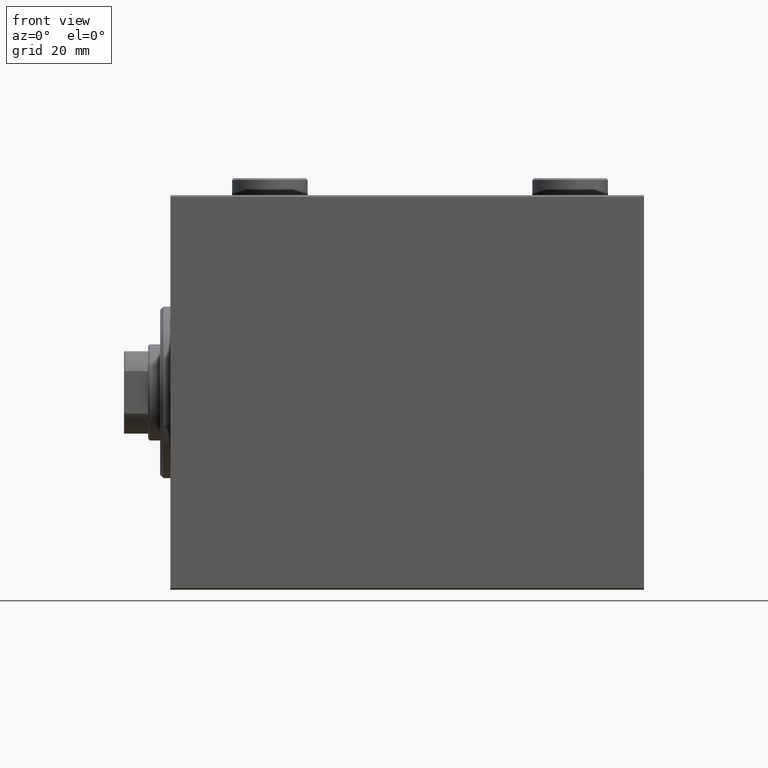
[diagram: clean part render]
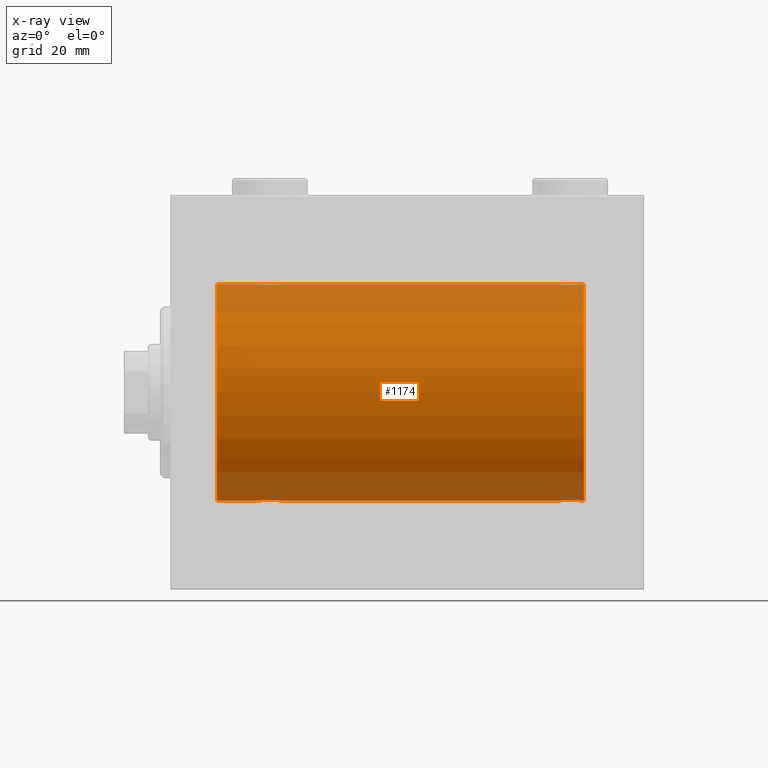
[diagram: x-ray — body ghosted, one internal face saturated and labeled with its STEP entity id]
A machine part, front view, then the same camera in x-ray: the body is ghosted and one INTERNAL B-rep face — a face not visible from any outside direction — is saturated and labeled: STEP entity #1174.
In plain terms, the highlighted cylindrical surface (partial cylindrical patch) has radius 31.5 mm, axis along (-1, -0, -0).
Its self-contained STEP definition (entity closure, byte-faithful):
#20 = B_SPLINE_CURVE_WITH_KNOTS ( 'NONE', 3,
 ( #30118, #26020, #11812, #25788, #43654, #33099, #26238, #4941, #39993, #12259, #36318, #32873, #43876, #15695, #8823, #33544, #9054, #5400, #1494, #22797, #19348, #33328, #1947, #29889, #23030, #26461, #35305, #7140, #34852, #17897, #41972, #27976 ),
 .UNSPECIFIED., .F., .F.,
 ( 4, 2, 2, 2, 2, 2, 2, 2, 2, 2, 2, 2, 2, 2, 2, 4 ),
 ( 0.009384682587134662163, 0.009971088165454068328, 0.01055749374377347449, 0.01114389932209288066, 0.01173030490041228682, 0.01231671047873168605, 0.01290311605705108527, 0.01348952163537048277, 0.01407592721368988199, 0.01466233279200928122, 0.01524873837032868044, 0.01583514394864807967, 0.01642154952696747716, 0.01700795510528687812, 0.01759436068360627908, 0.01876717184024507407 ),
 .UNSPECIFIED. ) ;
#126 = CARTESIAN_POINT ( 'NONE',  ( 114.6729577462973424, -2.387531469909792481, -31.40957782495775419 ) ) ;
#361 = CARTESIAN_POINT ( 'NONE',  ( 119.4041945073805948, -0.7775502215293851327, -31.49099686045559565 ) ) ;
#528 = CARTESIAN_POINT ( 'NONE',  ( 31.92020662950040943, -0.7905881588836116691, 31.49214662150068378 ) ) ;
#606 = B_SPLINE_CURVE_WITH_KNOTS ( 'NONE', 3,
 ( #26605, #37816, #23854, #23630, #26378, #20179, #8966, #23168, #26831, #37131, #5546, #40814, #34147, #30263, #19491, #33465, #30488, #44464, #27050, #41040, #9646, #37599, #3671, #31603, #17194, #14436, #28394, #34591, #10772, #16956, #31839, #42387 ),
 .UNSPECIFIED., .F., .F.,
 ( 4, 2, 2, 2, 2, 2, 2, 2, 2, 2, 2, 2, 2, 2, 2, 4 ),
 ( 0.009384682587134660428, 0.009971088165454063124, 0.01055749374377346582, 0.01114389932209286851, 0.01173030490041227121, 0.01231671047873167217, 0.01290311605705107313, 0.01348952163537047583, 0.01407592721368987679, 0.01466233279200927775, 0.01524873837032867871, 0.01583514394864807967, 0.01642154952696748410, 0.01700795510528688506, 0.01759436068360628602, 0.01876717184024507407 ),
 .UNSPECIFIED. ) ;
#755 = CARTESIAN_POINT ( 'NONE',  ( 31.60192140439154684, -1.506272792558323470, 31.46439306106697131 ) ) ;
#792 = CARTESIAN_POINT ( 'NONE',  ( 113.5000000000000142, -1.354660151018645615E-14, -31.50000000000000000 ) ) ;
#805 = CARTESIAN_POINT ( 'NONE',  ( 118.8850144227693306, -1.830470878313876781, -31.44719957596828763 ) ) ;
#1174 = ADVANCED_FACE ( 'NONE', ( #40471 ), #37024, .F. ) ;
#1485 = CARTESIAN_POINT ( 'NONE',  ( 113.8047035764099064, -1.331741824817675113, -31.47235367475394341 ) ) ;
#1494 = CARTESIAN_POINT ( 'NONE',  ( 28.60885452660059869, -2.980809450819698725, -31.35867074198615256 ) ) ;
#1710 = CARTESIAN_POINT ( 'NONE',  ( 114.1175312773337112, -1.833765390051052657, -31.44700610425689291 ) ) ;
#1947 = CARTESIAN_POINT ( 'NONE',  ( 27.49901843703856130, -2.604888532024793424, -31.39229907792058683 ) ) ;
#1990 = VERTEX_POINT ( 'NONE', #31324 ) ;
#2409 = VERTEX_POINT ( 'NONE', #792 ) ;
#3306 = VERTEX_POINT ( 'NONE', #23969 ) ;
#3671 = CARTESIAN_POINT ( 'NONE',  ( 118.0009815629615133, -2.604888532024798309, 31.39229907792057972 ) ) ;
#3986 = CARTESIAN_POINT ( 'NONE',  ( 26.73904537543869608, -1.981494824113328779, 31.43792153503155973 ) ) ;
#4206 = CARTESIAN_POINT ( 'NONE',  ( 27.49543714993000876, -2.602826974226395862, 31.39247100434485560 ) ) ;
#4256 = CARTESIAN_POINT ( 'NONE',  ( 116.3041770556056349, -3.000152387858500802, -31.35680286115499626 ) ) ;
#4480 = CARTESIAN_POINT ( 'NONE',  ( 119.1971423883670411, -1.328004386210309251, -31.47251238182141719 ) ) ;
#4941 = CARTESIAN_POINT ( 'NONE',  ( 31.38501442276926667, -1.830470878313872563, -31.44719957596828763 ) ) ;
#5400 = CARTESIAN_POINT ( 'NONE',  ( 28.80417705560560648, -3.000152387858484371, -31.35680286115500337 ) ) ;
#5546 = CARTESIAN_POINT ( 'NONE',  ( 114.6695630851300081, -2.384935707362449087, 31.40977595730572958 ) ) ;
#5650 = DIRECTION ( 'NONE',  ( -1.000000000000000000, -0.000000000000000000, -0.000000000000000000 ) ) ;
#5674 = VERTEX_POINT ( 'NONE', #15713 ) ;
#6752 = DIRECTION ( 'NONE',  ( 0.000000000000000000, 0.000000000000000000, 1.000000000000000000 ) ) ;
#7140 = CARTESIAN_POINT ( 'NONE',  ( 26.39807859560848158, -1.506272792558332130, -31.46439306106697131 ) ) ;
#7236 = CARTESIAN_POINT ( 'NONE',  ( 119.4810150939152038, -0.3904857149112013204, -31.49817436802766224 ) ) ;
#7649 = CARTESIAN_POINT ( 'NONE',  ( 26.09580549261944427, -0.7775502215293862429, 31.49099686045558144 ) ) ;
#7863 = CARTESIAN_POINT ( 'NONE',  ( 28.79953541025904684, -2.999845816735297266, 31.35683219171744796 ) ) ;
#8402 = B_SPLINE_CURVE_WITH_KNOTS ( 'NONE', 3,
 ( #14562, #42516, #7236, #361, #11125, #4480, #28077, #805, #14341, #25101, #39300, #14788, #39073, #42074, #10451, #20983, #35631, #4256, #25330, #24427, #34947, #21884, #31505, #126, #10681, #28298, #1710, #32862, #1485, #22560, #43421, #8585 ),
 .UNSPECIFIED., .F., .F.,
 ( 4, 2, 2, 2, 2, 2, 2, 2, 2, 2, 2, 2, 2, 2, 2, 4 ),
 ( 0.009384682587134677775, 0.009971088165454078736, 0.01055749374377348143, 0.01114389932209288239, 0.01173030490041228509, 0.01231671047873168778, 0.01290311605705108874, 0.01348952163537048970, 0.01407592721368989067, 0.01466233279200929336, 0.01524873837032869606, 0.01583514394864809702, 0.01642154952696749798, 0.01700795510528689894, 0.01759436068360629990, 0.01876717184024510529 ),
 .UNSPECIFIED. ) ;
#8585 = CARTESIAN_POINT ( 'NONE',  ( 113.5000000000000142, -1.354660151018645615E-14, -31.50000000000000000 ) ) ;
#8823 = CARTESIAN_POINT ( 'NONE',  ( 29.77881912642320827, -2.903733559410679455, -31.36590199989303684 ) ) ;
#8966 = CARTESIAN_POINT ( 'NONE',  ( 113.8958221872527332, -1.502389880413010026, 31.46458023642405877 ) ) ;
#9054 = CARTESIAN_POINT ( 'NONE',  ( 29.20046458974095671, -2.999845816735294157, -31.35683219171744085 ) ) ;
#9545 = ORIENTED_EDGE ( 'NONE', *, *, #36792, .T. ) ;
#9646 = CARTESIAN_POINT ( 'NONE',  ( 117.4651572981064191, -2.847307171789044133, 31.37114183851420890 ) ) ;
#10451 = CARTESIAN_POINT ( 'NONE',  ( 117.2788191264232438, -2.903733559410696774, -31.36590199989303684 ) ) ;
#10681 = CARTESIAN_POINT ( 'NONE',  ( 114.5185653712695597, -2.261012035264799103, -31.41905495618427224 ) ) ;
#10772 = CARTESIAN_POINT ( 'NONE',  ( 119.1952964235901504, -1.331741824817663122, 31.47235367475394341 ) ) ;
#11125 = CARTESIAN_POINT ( 'NONE',  ( 119.3466046374250453, -0.9669616078781998469, -31.48567319468627446 ) ) ;
#11432 = EDGE_CURVE ( 'NONE', #5674, #11724, #20759, .T. ) ;
#11506 = CARTESIAN_POINT ( 'NONE',  ( 32.00000000000000000, -3.906065418435112189E-16, 31.50000000000000000 ) ) ;
#11724 = VERTEX_POINT ( 'NONE', #44944 ) ;
#11752 = CARTESIAN_POINT ( 'NONE',  ( 32.00000000000001421, -0.3965830985361748495, 31.50000000000001421 ) ) ;
#11795 = EDGE_CURVE ( 'NONE', #2409, #38192, #20653, .T. ) ;
#11812 = CARTESIAN_POINT ( 'NONE',  ( 31.98101509391517538, -0.3904857149111993775, -31.49817436802766224 ) ) ;
#12259 = CARTESIAN_POINT ( 'NONE',  ( 30.98460359924664687, -2.258226318633781649, -31.41925597582825702 ) ) ;
#12569 = DIRECTION ( 'NONE',  ( 0.000000000000000000, 0.000000000000000000, 1.000000000000000000 ) ) ;
#12760 = VECTOR ( 'NONE', #21329, 1000.000000000000000 ) ;
#13848 = DIRECTION ( 'NONE',  ( -1.000000000000000000, 0.000000000000000000, 0.000000000000000000 ) ) ;
#14341 = CARTESIAN_POINT ( 'NONE',  ( 118.7609546245613643, -1.981494824113334774, -31.43792153503157394 ) ) ;
#14421 = CIRCLE ( 'NONE', #40029, 31.50000000000000000 ) ;
#14436 = CARTESIAN_POINT ( 'NONE',  ( 118.7582450190326995, -1.984587626072075617, 31.43772577203671759 ) ) ;
#14514 = CARTESIAN_POINT ( 'NONE',  ( 27.01539640075335669, -2.258226318633785201, 31.41925597582825702 ) ) ;
#14562 = CARTESIAN_POINT ( 'NONE',  ( 119.5000000000000284, 3.857637396143758955E-15, -31.50000000000000000 ) ) ;
#14609 = CIRCLE ( 'NONE', #24099, 31.50000000000000000 ) ;
#14738 = CARTESIAN_POINT ( 'NONE',  ( 27.16956308512997964, -2.384935707362437096, 31.40977595730572958 ) ) ;
#14788 = CARTESIAN_POINT ( 'NONE',  ( 118.0045628500700161, -2.602826974226410961, -31.39247100434486271 ) ) ;
#14971 = CARTESIAN_POINT ( 'NONE',  ( 28.03055544341478722, -2.845838211243333138, 31.37127560316186603 ) ) ;
#15423 = ORIENTED_EDGE ( 'NONE', *, *, #43253, .F. ) ;
#15695 = CARTESIAN_POINT ( 'NONE',  ( 29.96944455658523054, -2.845838211243329585, -31.37127560316186603 ) ) ;
#15713 = CARTESIAN_POINT ( 'NONE',  ( 120.5000000000000000, 0.000000000000000000, 31.50000000000000000 ) ) ;
#15940 = CARTESIAN_POINT ( 'NONE',  ( 120.5000000000000000, 0.000000000000000000, 0.000000000000000000 ) ) ;
#16317 = EDGE_CURVE ( 'NONE', #30892, #34894, #44251, .T. ) ;
#16758 = ORIENTED_EDGE ( 'NONE', *, *, #16317, .T. ) ;
#16782 = B_SPLINE_CURVE_WITH_KNOTS ( 'NONE', 3,
 ( #25283, #21832, #25050, #7649, #25727, #22061, #39023, #22294, #3986, #14514, #14738, #4206, #36265, #14971, #28939, #35805, #7863, #18157, #32140, #39250, #42921, #36032, #39709, #21620, #17944, #18613, #31915, #755, #43145, #528, #11752, #28476 ),
 .UNSPECIFIED., .F., .F.,
 ( 4, 2, 2, 2, 2, 2, 2, 2, 2, 2, 2, 2, 2, 2, 2, 4 ),
 ( 0.009384682587134639611, 0.009971088165454038837, 0.01055749374377343980, 0.01114389932209284076, 0.01173030490041223999, 0.01231671047873163921, 0.01290311605705104017, 0.01348952163537044113, 0.01407592721368984036, 0.01466233279200923958, 0.01524873837032864055, 0.01583514394864804151, 0.01642154952696744247, 0.01700795510528683996, 0.01759436068360624092, 0.01876717184024503243 ),
 .UNSPECIFIED. ) ;
#16956 = CARTESIAN_POINT ( 'NONE',  ( 119.4202066295004840, -0.7905881588836165541, 31.49214662150069088 ) ) ;
#17194 = CARTESIAN_POINT ( 'NONE',  ( 118.4814346287304403, -2.261012035264784892, 31.41905495618427935 ) ) ;
#17347 = LINE ( 'NONE', #41205, #40131 ) ;
#17879 = ORIENTED_EDGE ( 'NONE', *, *, #18494, .T. ) ;
#17897 = CARTESIAN_POINT ( 'NONE',  ( 26.07979337049960478, -0.7905881588836203289, -31.49214662150069088 ) ) ;
#17944 = CARTESIAN_POINT ( 'NONE',  ( 30.98143462873041898, -2.261012035264782227, 31.41905495618429356 ) ) ;
#17955 = DIRECTION ( 'NONE',  ( -1.000000000000000000, -0.000000000000000000, -0.000000000000000000 ) ) ;
#18157 = CARTESIAN_POINT ( 'NONE',  ( 29.19582294439440417, -3.000152387858486147, 31.35680286115499626 ) ) ;
#18411 = ORIENTED_EDGE ( 'NONE', *, *, #21367, .T. ) ;
#18494 = EDGE_CURVE ( 'NONE', #34894, #1990, #14421, .T. ) ;
#18613 = CARTESIAN_POINT ( 'NONE',  ( 31.25824501903266039, -1.984587626072074285, 31.43772577203672469 ) ) ;
#19348 = CARTESIAN_POINT ( 'NONE',  ( 28.03484270189360217, -2.847307171789034808, -31.37114183851420179 ) ) ;
#19491 = CARTESIAN_POINT ( 'NONE',  ( 115.7211808735768699, -2.903733559410697662, 31.36590199989305106 ) ) ;
#19721 = CARTESIAN_POINT ( 'NONE',  ( 120.5000000000000000, 3.857637417314162689E-15, -31.50000000000000000 ) ) ;
#19734 = CARTESIAN_POINT ( 'NONE',  ( 26.00000000000000355, -2.117263226567934635E-23, 31.50000000000000000 ) ) ;
#20179 = CARTESIAN_POINT ( 'NONE',  ( 113.8028576116330726, -1.328004386210315024, 31.47251238182141719 ) ) ;
#20653 = LINE ( 'NONE', #38737, #12760 ) ;
#20759 = LINE ( 'NONE', #38396, #42791 ) ;
#20983 = CARTESIAN_POINT ( 'NONE',  ( 116.8953411100009987, -2.980257240990069167, -31.35872356503797320 ) ) ;
#21308 = CARTESIAN_POINT ( 'NONE',  ( 26.00000000000000355, -6.595038141055444136E-15, -31.50000000000000000 ) ) ;
#21329 = DIRECTION ( 'NONE',  ( -1.000000000000000000, -0.000000000000000000, -0.000000000000000000 ) ) ;
#21367 = EDGE_CURVE ( 'NONE', #37442, #3306, #17347, .T. ) ;
#21620 = CARTESIAN_POINT ( 'NONE',  ( 30.82704225370267892, -2.387531469909770276, 31.40957782495776129 ) ) ;
#21832 = CARTESIAN_POINT ( 'NONE',  ( 26.00000000000001066, -0.1958045626907463088, 31.50000000000000711 ) ) ;
#21884 = CARTESIAN_POINT ( 'NONE',  ( 115.1713458531249330, -2.696917666262924840, -31.38442820068731365 ) ) ;
#22061 = CARTESIAN_POINT ( 'NONE',  ( 26.30285761163300151, -1.328004386210305698, 31.47251238182140298 ) ) ;
#22072 = CARTESIAN_POINT ( 'NONE',  ( 120.5000000000000000, 0.000000000000000000, 31.50000000000000000 ) ) ;
#22294 = CARTESIAN_POINT ( 'NONE',  ( 26.61498557723073333, -1.830470878313877892, 31.44719957596828053 ) ) ;
#22560 = CARTESIAN_POINT ( 'NONE',  ( 113.5797933704995586, -0.7905881588836273233, -31.49214662150069088 ) ) ;
#22797 = CARTESIAN_POINT ( 'NONE',  ( 28.22530905565627179, -2.904836261170103739, -31.36579955910872286 ) ) ;
#22812 = CARTESIAN_POINT ( 'NONE',  ( 13.49999999999999822, 3.857637417314162689E-15, -31.50000000000000000 ) ) ;
#23030 = CARTESIAN_POINT ( 'NONE',  ( 27.01856537126958813, -2.261012035264781783, -31.41905495618428645 ) ) ;
#23168 = CARTESIAN_POINT ( 'NONE',  ( 114.1149855772307404, -1.830470878313887884, 31.44719957596828053 ) ) ;
#23346 = ORIENTED_EDGE ( 'NONE', *, *, #11795, .T. ) ;
#23423 = CARTESIAN_POINT ( 'NONE',  ( 113.5000000000000142, -2.116947682205846230E-23, 31.50000000000000000 ) ) ;
#23487 = DIRECTION ( 'NONE',  ( -1.000000000000000000, -0.000000000000000000, -0.000000000000000000 ) ) ;
#23630 = CARTESIAN_POINT ( 'NONE',  ( 113.5958054926194620, -0.7775502215293907948, 31.49099686045558855 ) ) ;
#23747 = ORIENTED_EDGE ( 'NONE', *, *, #43141, .F. ) ;
#23854 = CARTESIAN_POINT ( 'NONE',  ( 113.5189849060848672, -0.3904857149112073711, 31.49817436802766935 ) ) ;
#23969 = CARTESIAN_POINT ( 'NONE',  ( 119.5000000000000284, 3.857637396143758955E-15, -31.50000000000000000 ) ) ;
#24040 = ORIENTED_EDGE ( 'NONE', *, *, #33362, .T. ) ;
#24099 = AXIS2_PLACEMENT_3D ( 'NONE', #41587, #13848, #6752 ) ;
#24427 = CARTESIAN_POINT ( 'NONE',  ( 115.7253090556563109, -2.904836261170121947, -31.36579955910872286 ) ) ;
#24783 = EDGE_CURVE ( 'NONE', #37442, #5674, #14609, .T. ) ;
#25050 = CARTESIAN_POINT ( 'NONE',  ( 26.01898490608483527, -0.3904857149112033743, 31.49817436802766935 ) ) ;
#25101 = CARTESIAN_POINT ( 'NONE',  ( 118.4846035992466966, -2.258226318633792751, -31.41925597582826413 ) ) ;
#25283 = CARTESIAN_POINT ( 'NONE',  ( 26.00000000000000355, -2.117263226567934635E-23, 31.50000000000000000 ) ) ;
#25330 = CARTESIAN_POINT ( 'NONE',  ( 116.1088545266006378, -2.980809450819716933, -31.35867074198615967 ) ) ;
#25508 = LINE ( 'NONE', #22072, #36839 ) ;
#25727 = CARTESIAN_POINT ( 'NONE',  ( 26.15339536257501507, -0.9669616078781987367, 31.48567319468626735 ) ) ;
#25788 = CARTESIAN_POINT ( 'NONE',  ( 31.90419450738055218, -0.7775502215293819130, -31.49099686045559565 ) ) ;
#26020 = CARTESIAN_POINT ( 'NONE',  ( 32.00000000000001421, -0.1958045626907418957, -31.50000000000000711 ) ) ;
#26214 = EDGE_CURVE ( 'NONE', #3306, #2409, #8402, .T. ) ;
#26238 = CARTESIAN_POINT ( 'NONE',  ( 31.60417781274729165, -1.502389880412996259, -31.46458023642406587 ) ) ;
#26378 = CARTESIAN_POINT ( 'NONE',  ( 113.6533953625750115, -0.9669616078782070634, 31.48567319468626735 ) ) ;
#26461 = CARTESIAN_POINT ( 'NONE',  ( 26.74175498096735026, -1.984587626072075617, -31.43772577203673180 ) ) ;
#26548 = CARTESIAN_POINT ( 'NONE',  ( 13.49999999999999822, 0.000000000000000000, 0.000000000000000000 ) ) ;
#26605 = CARTESIAN_POINT ( 'NONE',  ( 113.5000000000000142, -2.116947682205846230E-23, 31.50000000000000000 ) ) ;
#26831 = CARTESIAN_POINT ( 'NONE',  ( 114.2390453754387067, -1.981494824113344322, 31.43792153503156683 ) ) ;
#26852 = ORIENTED_EDGE ( 'NONE', *, *, #24783, .F. ) ;
#27050 = CARTESIAN_POINT ( 'NONE',  ( 116.8911454733994617, -2.980809450819711159, 31.35867074198615967 ) ) ;
#27290 = CARTESIAN_POINT ( 'NONE',  ( 32.00000000000000000, 3.857637396137448068E-15, -31.50000000000000000 ) ) ;
#27838 = ORIENTED_EDGE ( 'NONE', *, *, #11432, .F. ) ;
#27976 = CARTESIAN_POINT ( 'NONE',  ( 26.00000000000000355, -6.595038141055444136E-15, -31.50000000000000000 ) ) ;
#28077 = CARTESIAN_POINT ( 'NONE',  ( 119.1041778127473094, -1.502389880412997147, -31.46458023642405877 ) ) ;
#28298 = CARTESIAN_POINT ( 'NONE',  ( 114.2417549809673432, -1.984587626072091160, -31.43772577203671048 ) ) ;
#28394 = CARTESIAN_POINT ( 'NONE',  ( 118.8824687226663315, -1.833765390051044442, 31.44700610425689291 ) ) ;
#28476 = CARTESIAN_POINT ( 'NONE',  ( 32.00000000000000000, -3.906065418435112189E-16, 31.50000000000000000 ) ) ;
#28939 = CARTESIAN_POINT ( 'NONE',  ( 28.22118087357680238, -2.903733559410683895, 31.36590199989303684 ) ) ;
#29183 = EDGE_CURVE ( 'NONE', #38192, #30892, #20, .T. ) ;
#29889 = CARTESIAN_POINT ( 'NONE',  ( 27.17295774629732819, -2.387531469909775605, -31.40957782495775419 ) ) ;
#29914 = DIRECTION ( 'NONE',  ( 0.000000000000000000, 0.000000000000000000, 1.000000000000000000 ) ) ;
#30118 = CARTESIAN_POINT ( 'NONE',  ( 32.00000000000000000, 3.857637396137448068E-15, -31.50000000000000000 ) ) ;
#30263 = CARTESIAN_POINT ( 'NONE',  ( 115.5305554434148263, -2.845838211243349569, 31.37127560316188024 ) ) ;
#30268 = DIRECTION ( 'NONE',  ( -1.000000000000000000, -0.000000000000000000, -0.000000000000000000 ) ) ;
#30322 = VECTOR ( 'NONE', #30268, 1000.000000000000000 ) ;
#30488 = CARTESIAN_POINT ( 'NONE',  ( 116.2995354102590397, -2.999845816735307036, 31.35683219171744796 ) ) ;
#30892 = VERTEX_POINT ( 'NONE', #21308 ) ;
#31058 = DIRECTION ( 'NONE',  ( -1.000000000000000000, -0.000000000000000000, -0.000000000000000000 ) ) ;
#31324 = CARTESIAN_POINT ( 'NONE',  ( 13.49999999999999822, 0.000000000000000000, 31.50000000000000000 ) ) ;
#31505 = CARTESIAN_POINT ( 'NONE',  ( 114.9990184370385720, -2.604888532024810299, -31.39229907792057972 ) ) ;
#31603 = CARTESIAN_POINT ( 'NONE',  ( 118.3270422537027144, -2.387531469909779158, 31.40957782495775419 ) ) ;
#31839 = CARTESIAN_POINT ( 'NONE',  ( 119.5000000000000426, -0.3965830985361750161, 31.50000000000000000 ) ) ;
#31915 = CARTESIAN_POINT ( 'NONE',  ( 31.38246872266631371, -1.833765390051040223, 31.44700610425690712 ) ) ;
#32140 = CARTESIAN_POINT ( 'NONE',  ( 29.39114547339941552, -2.980809450819701834, 31.35867074198615967 ) ) ;
#32862 = CARTESIAN_POINT ( 'NONE',  ( 113.8980785956084532, -1.506272792558335683, -31.46439306106695710 ) ) ;
#32873 = CARTESIAN_POINT ( 'NONE',  ( 30.50456285006998769, -2.602826974226392309, -31.39247100434485560 ) ) ;
#33099 = CARTESIAN_POINT ( 'NONE',  ( 31.69714238836700915, -1.328004386210301480, -31.47251238182141009 ) ) ;
#33174 = EDGE_LOOP ( 'NONE', ( #26852, #18411, #42929, #23346, #42431, #16758, #17879, #15423, #24040, #23747, #9545, #27838 ) ) ;
#33328 = CARTESIAN_POINT ( 'NONE',  ( 27.67134585312494011, -2.696917666262907520, -31.38442820068732786 ) ) ;
#33362 = EDGE_CURVE ( 'NONE', #38605, #37339, #16782, .T. ) ;
#33465 = CARTESIAN_POINT ( 'NONE',  ( 116.1046588899990724, -2.980257240990066947, 31.35872356503798031 ) ) ;
#33544 = CARTESIAN_POINT ( 'NONE',  ( 29.39534111000094541, -2.980257240990050960, -31.35872356503797320 ) ) ;
#34147 = CARTESIAN_POINT ( 'NONE',  ( 115.1676004190083944, -2.695056442718549494, 31.38458855656185875 ) ) ;
#34591 = CARTESIAN_POINT ( 'NONE',  ( 119.1019214043915468, -1.506272792558327245, 31.46439306106695710 ) ) ;
#34596 = CARTESIAN_POINT ( 'NONE',  ( 120.5000000000000000, 3.857637417314162689E-15, -31.50000000000000000 ) ) ;
#34852 = CARTESIAN_POINT ( 'NONE',  ( 26.30470357640989576, -1.331741824817665343, -31.47235367475392920 ) ) ;
#34894 = VERTEX_POINT ( 'NONE', #22812 ) ;
#34947 = CARTESIAN_POINT ( 'NONE',  ( 115.5348427018936377, -2.847307171789053903, -31.37114183851420179 ) ) ;
#35305 = CARTESIAN_POINT ( 'NONE',  ( 26.61753127733371116, -1.833765390051047106, -31.44700610425690002 ) ) ;
#35631 = CARTESIAN_POINT ( 'NONE',  ( 116.7004645897410029, -2.999845816735310589, -31.35683219171744796 ) ) ;
#35805 = CARTESIAN_POINT ( 'NONE',  ( 28.60465888999904749, -2.980257240990054513, 31.35872356503797320 ) ) ;
#36032 = CARTESIAN_POINT ( 'NONE',  ( 30.32865414687508832, -2.696917666262907520, 31.38442820068731365 ) ) ;
#36265 = CARTESIAN_POINT ( 'NONE',  ( 27.66760041900836953, -2.695056442718533507, 31.38458855656185875 ) ) ;
#36318 = CARTESIAN_POINT ( 'NONE',  ( 30.83043691487002746, -2.384935707362433988, -31.40977595730572958 ) ) ;
#36792 = EDGE_CURVE ( 'NONE', #39704, #11724, #606, .T. ) ;
#36839 = VECTOR ( 'NONE', #17955, 1000.000000000000000 ) ;
#37024 = CYLINDRICAL_SURFACE ( 'NONE', #44720, 31.50000000000000000 ) ;
#37131 = CARTESIAN_POINT ( 'NONE',  ( 114.5153964007534029, -2.258226318633800300, 31.41925597582826413 ) ) ;
#37339 = VERTEX_POINT ( 'NONE', #11506 ) ;
#37442 = VERTEX_POINT ( 'NONE', #19721 ) ;
#37599 = CARTESIAN_POINT ( 'NONE',  ( 117.8286541468751238, -2.696917666262913738, 31.38442820068732075 ) ) ;
#37816 = CARTESIAN_POINT ( 'NONE',  ( 113.5000000000000284, -0.1958045626907495562, 31.50000000000000000 ) ) ;
#38192 = VERTEX_POINT ( 'NONE', #27290 ) ;
#38205 = DIRECTION ( 'NONE',  ( -1.000000000000000000, -0.000000000000000000, -0.000000000000000000 ) ) ;
#38396 = CARTESIAN_POINT ( 'NONE',  ( 120.5000000000000000, 0.000000000000000000, 31.50000000000000000 ) ) ;
#38605 = VERTEX_POINT ( 'NONE', #19734 ) ;
#38737 = CARTESIAN_POINT ( 'NONE',  ( 120.5000000000000000, 3.857637417314162689E-15, -31.50000000000000000 ) ) ;
#39023 = CARTESIAN_POINT ( 'NONE',  ( 26.39582218725271900, -1.502389880413001144, 31.46458023642405166 ) ) ;
#39073 = CARTESIAN_POINT ( 'NONE',  ( 117.8323995809916767, -2.695056442718546830, -31.38458855656186230 ) ) ;
#39250 = CARTESIAN_POINT ( 'NONE',  ( 29.77469094434372821, -2.904836261170106404, 31.36579955910873707 ) ) ;
#39300 = CARTESIAN_POINT ( 'NONE',  ( 118.3304369148700346, -2.384935707362452195, -31.40977595730572247 ) ) ;
#39704 = VERTEX_POINT ( 'NONE', #23423 ) ;
#39709 = CARTESIAN_POINT ( 'NONE',  ( 30.50098156296146712, -2.604888532024788983, 31.39229907792058683 ) ) ;
#39993 = CARTESIAN_POINT ( 'NONE',  ( 31.26095462456130747, -1.981494824113326114, -31.43792153503156683 ) ) ;
#40029 = AXIS2_PLACEMENT_3D ( 'NONE', #26548, #40079, #12569 ) ;
#40079 = DIRECTION ( 'NONE',  ( -1.000000000000000000, 0.000000000000000000, 0.000000000000000000 ) ) ;
#40131 = VECTOR ( 'NONE', #38205, 1000.000000000000000 ) ;
#40471 = FACE_OUTER_BOUND ( 'NONE', #33174, .T. ) ;
#40814 = CARTESIAN_POINT ( 'NONE',  ( 114.9954371499299839, -2.602826974226406076, 31.39247100434484850 ) ) ;
#41040 = CARTESIAN_POINT ( 'NONE',  ( 117.2746909443437460, -2.904836261170115730, 31.36579955910872997 ) ) ;
#41205 = CARTESIAN_POINT ( 'NONE',  ( 120.5000000000000000, 3.857637417314162689E-15, -31.50000000000000000 ) ) ;
#41580 = CARTESIAN_POINT ( 'NONE',  ( 120.5000000000000000, 0.000000000000000000, 31.50000000000000000 ) ) ;
#41587 = CARTESIAN_POINT ( 'NONE',  ( 120.5000000000000000, 0.000000000000000000, 0.000000000000000000 ) ) ;
#41972 = CARTESIAN_POINT ( 'NONE',  ( 26.00000000000000355, -0.3965830985361813443, -31.50000000000000711 ) ) ;
#42074 = CARTESIAN_POINT ( 'NONE',  ( 117.4694445565852448, -2.845838211243347793, -31.37127560316186603 ) ) ;
#42387 = CARTESIAN_POINT ( 'NONE',  ( 119.5000000000000284, -2.415502498297804861E-16, 31.50000000000000000 ) ) ;
#42431 = ORIENTED_EDGE ( 'NONE', *, *, #29183, .T. ) ;
#42516 = CARTESIAN_POINT ( 'NONE',  ( 119.5000000000000568, -0.1958045626907434222, -31.50000000000000711 ) ) ;
#42791 = VECTOR ( 'NONE', #31058, 1000.000000000000000 ) ;
#42921 = CARTESIAN_POINT ( 'NONE',  ( 29.96515729810641204, -2.847307171789037028, 31.37114183851420890 ) ) ;
#42929 = ORIENTED_EDGE ( 'NONE', *, *, #26214, .T. ) ;
#43141 = EDGE_CURVE ( 'NONE', #39704, #37339, #44775, .T. ) ;
#43145 = CARTESIAN_POINT ( 'NONE',  ( 31.69529642359010424, -1.331741824817659348, 31.47235367475393630 ) ) ;
#43253 = EDGE_CURVE ( 'NONE', #38605, #1990, #25508, .T. ) ;
#43421 = CARTESIAN_POINT ( 'NONE',  ( 113.5000000000000284, -0.3965830985361872840, -31.50000000000000711 ) ) ;
#43654 = CARTESIAN_POINT ( 'NONE',  ( 31.84660463742499559, -0.9669616078781945179, -31.48567319468626735 ) ) ;
#43876 = CARTESIAN_POINT ( 'NONE',  ( 30.33239958099164824, -2.695056442718529954, -31.38458855656185875 ) ) ;
#44133 = VECTOR ( 'NONE', #23487, 1000.000000000000000 ) ;
#44251 = LINE ( 'NONE', #34596, #30322 ) ;
#44464 = CARTESIAN_POINT ( 'NONE',  ( 116.6958229443944361, -3.000152387858496805, 31.35680286115500337 ) ) ;
#44720 = AXIS2_PLACEMENT_3D ( 'NONE', #15940, #5650, #29914 ) ;
#44775 = LINE ( 'NONE', #41580, #44133 ) ;
#44944 = CARTESIAN_POINT ( 'NONE',  ( 119.5000000000000284, -2.415502498297804861E-16, 31.50000000000000000 ) ) ;